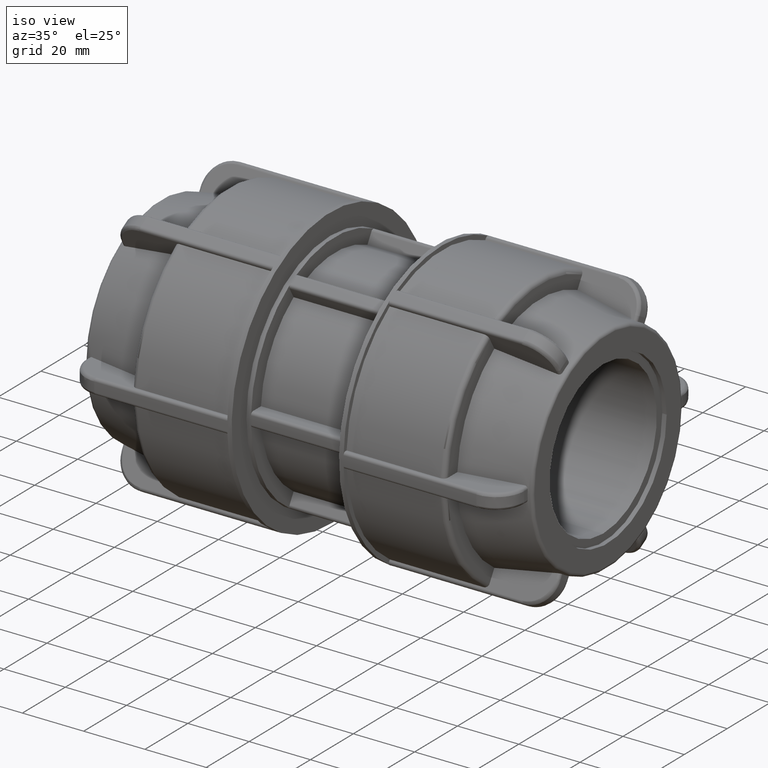
[diagram: clean part render]
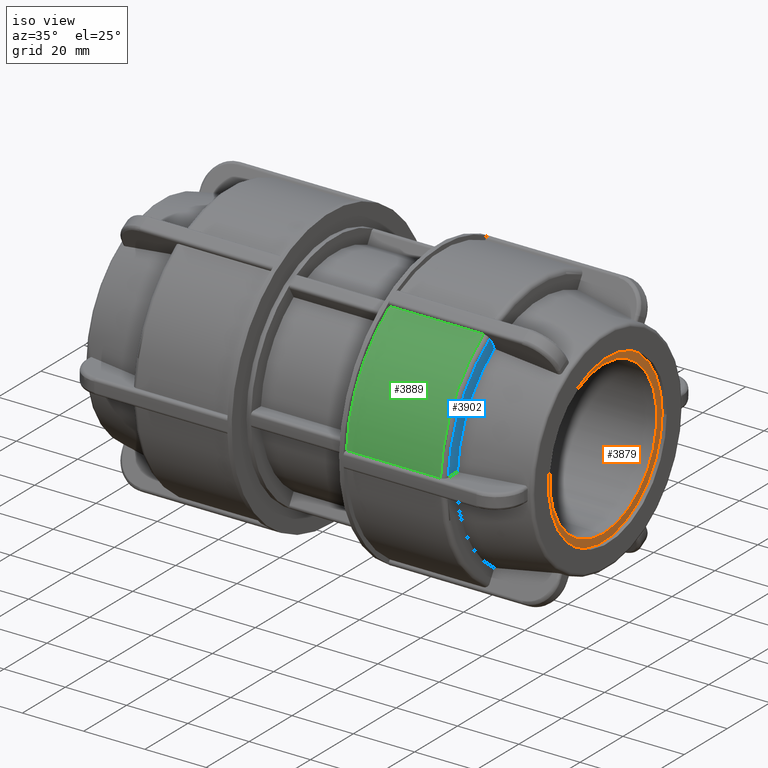
[diagram: same view with three faces highlighted in distinct colors, each labeled with its STEP entity id]
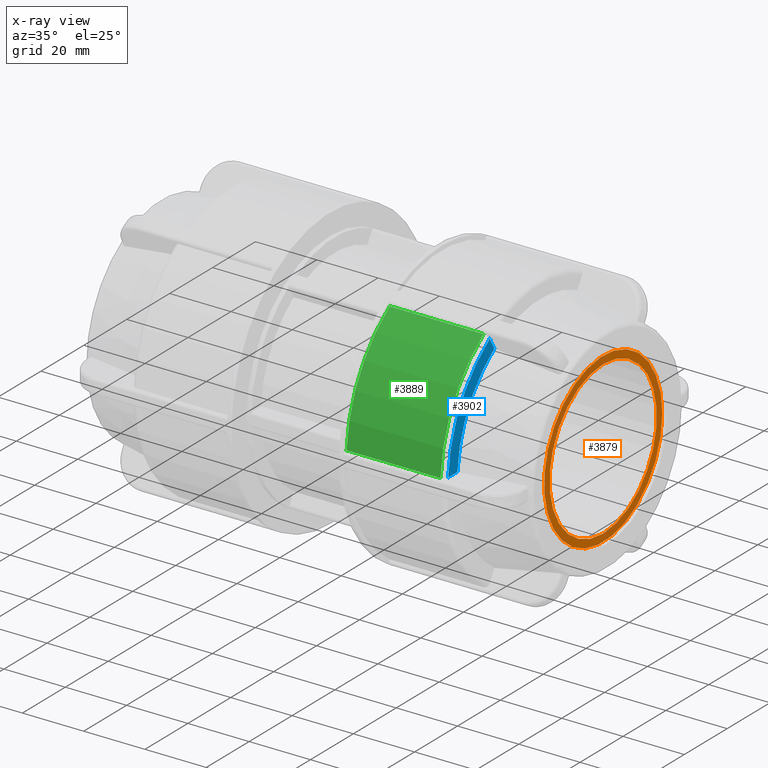
[diagram: x-ray of the same camera — body ghosted, the three highlighted faces saturated]
A machine part, iso view with three faces highlighted in distinct colors.
The next image is the same camera in x-ray (body ghosted, the three faces saturated) — at least one of them is partly hidden behind the body in this view.
Their STEP definitions:

[orange] entity #3879 — the highlighted planar face has unit normal (1, 0, 0).
#207=FACE_BOUND('',#744,.T.);
#286=PLANE('',#4287);
#493=FACE_OUTER_BOUND('',#743,.T.);
#743=EDGE_LOOP('',(#3392));
#744=EDGE_LOOP('',(#3393));
#1299=CIRCLE('',#4018,25.);
#1445=CIRCLE('',#4288,27.5);
#1558=VERTEX_POINT('',#5706);
#1835=VERTEX_POINT('',#7893);
#1971=EDGE_CURVE('',#1558,#1558,#1299,.T.);
#2383=EDGE_CURVE('',#1835,#1835,#1445,.T.);
#3392=ORIENTED_EDGE('',*,*,#2383,.T.);
#3393=ORIENTED_EDGE('',*,*,#1971,.T.);
#3879=ADVANCED_FACE('',(#493,#207),#286,.T.);
#4018=AXIS2_PLACEMENT_3D('',#5707,#4615,#4616);
#4287=AXIS2_PLACEMENT_3D('',#7892,#5309,#5310);
#4288=AXIS2_PLACEMENT_3D('',#7894,#5311,#5312);
#4615=DIRECTION('center_axis',(-1.,-3.06161699786838E-16,0.));
#4616=DIRECTION('ref_axis',(0.,0.,1.));
#5309=DIRECTION('center_axis',(1.,3.06161699786838E-16,0.));
#5310=DIRECTION('ref_axis',(0.,0.,-1.));
#5311=DIRECTION('center_axis',(1.,3.06161699786838E-16,0.));
#5312=DIRECTION('ref_axis',(0.,0.,-1.));
#5706=CARTESIAN_POINT('',(71.54,1.8841191004882E-14,-25.));
#5707=CARTESIAN_POINT('Origin',(71.54,2.19028080027504E-14,0.));
#7892=CARTESIAN_POINT('Origin',(71.54,14.72,0.));
#7893=CARTESIAN_POINT('',(71.54,15.8581274470903,-22.4670824512629));
#7894=CARTESIAN_POINT('Origin',(71.54,2.19028080027504E-14,0.));

[blue] entity #3902 — the highlighted planar face has unit normal (1, 0, 0).
#296=PLANE('',#4339);
#516=FACE_OUTER_BOUND('',#769,.T.);
#769=EDGE_LOOP('',(#3525,#3526,#3527,#3528));
#982=LINE('',#7620,#1210);
#998=LINE('',#7835,#1226);
#1210=VECTOR('',#5244,4.30647030369141);
#1226=VECTOR('',#5296,4.30647030369141);
#1462=CIRCLE('',#4321,43.16);
#1470=CIRCLE('',#4333,38.8615608775154);
#1797=VERTEX_POINT('',#7608);
#1798=VERTEX_POINT('',#7619);
#1823=VERTEX_POINT('',#7830);
#1824=VERTEX_POINT('',#7834);
#2331=EDGE_CURVE('',#1798,#1797,#982,.T.);
#2369=EDGE_CURVE('',#1824,#1823,#998,.T.);
#2405=EDGE_CURVE('',#1824,#1797,#1462,.T.);
#2418=EDGE_CURVE('',#1798,#1823,#1470,.T.);
#3525=ORIENTED_EDGE('',*,*,#2369,.T.);
#3526=ORIENTED_EDGE('',*,*,#2418,.F.);
#3527=ORIENTED_EDGE('',*,*,#2331,.T.);
#3528=ORIENTED_EDGE('',*,*,#2405,.F.);
#3902=ADVANCED_FACE('',(#516),#296,.T.);
#4321=AXIS2_PLACEMENT_3D('',#7948,#5381,#5382);
#4333=AXIS2_PLACEMENT_3D('',#8009,#5405,#5406);
#4339=AXIS2_PLACEMENT_3D('',#8017,#5418,#5419);
#5244=DIRECTION('',(1.53080849893419E-16,-0.5,0.866025403784439));
#5296=DIRECTION('',(-3.06161699786838E-16,1.,-3.33066907387547E-16));
#5381=DIRECTION('center_axis',(-1.,-3.06161699786838E-16,0.));
#5382=DIRECTION('ref_axis',(3.06161699786838E-16,-1.,1.83697019872103E-16));
#5405=DIRECTION('center_axis',(1.,3.06161699786838E-16,0.));
#5406=DIRECTION('ref_axis',(0.,0.,-1.));
#5418=DIRECTION('center_axis',(1.,3.06161699786838E-16,0.));
#5419=DIRECTION('ref_axis',(0.,0.,-1.));
#7608=CARTESIAN_POINT('',(51.1,-23.7088305895239,36.0648991690987));
#7619=CARTESIAN_POINT('',(51.1,-21.5555954376782,32.3353864854586));
#7620=CARTESIAN_POINT('',(51.1,-8.79037214443708,10.2253711716032));
#7830=CARTESIAN_POINT('',(51.1,-38.7810638564343,2.50000000000001));
#7834=CARTESIAN_POINT('',(51.1,-43.0875341601257,2.50000000000001));
#7835=CARTESIAN_POINT('',(51.1,12.1777052288898,2.5));
#7948=CARTESIAN_POINT('Origin',(51.1,1.56448628591074E-14,0.));
#8009=CARTESIAN_POINT('Origin',(51.1,1.56448628591074E-14,0.));
#8017=CARTESIAN_POINT('Origin',(51.1,38.8615608775154,0.));

[green] entity #3889 — the highlighted cylindrical surface (partial cylindrical patch) has radius 44.62 mm, axis along (1, 0, 0).
#503=FACE_OUTER_BOUND('',#755,.T.);
#755=EDGE_LOOP('',(#3440,#3441,#3442,#3443));
#981=LINE('',#7607,#1209);
#999=LINE('',#7848,#1227);
#1209=VECTOR('',#5243,30.66);
#1227=VECTOR('',#5297,30.66);
#1449=CIRCLE('',#4296,44.62);
#1456=CIRCLE('',#4309,44.62);
#1795=VERTEX_POINT('',#7604);
#1796=VERTEX_POINT('',#7606);
#1825=VERTEX_POINT('',#7836);
#1826=VERTEX_POINT('',#7847);
#2329=EDGE_CURVE('',#1796,#1795,#981,.T.);
#2371=EDGE_CURVE('',#1826,#1825,#999,.T.);
#2388=EDGE_CURVE('',#1795,#1826,#1449,.T.);
#2397=EDGE_CURVE('',#1796,#1825,#1456,.T.);
#3440=ORIENTED_EDGE('',*,*,#2371,.T.);
#3441=ORIENTED_EDGE('',*,*,#2397,.F.);
#3442=ORIENTED_EDGE('',*,*,#2329,.T.);
#3443=ORIENTED_EDGE('',*,*,#2388,.T.);
#3681=CYLINDRICAL_SURFACE('',#4308,44.62);
#3889=ADVANCED_FACE('',(#503),#3681,.T.);
#4296=AXIS2_PLACEMENT_3D('',#7905,#5328,#5329);
#4308=AXIS2_PLACEMENT_3D('',#7922,#5354,#5355);
#4309=AXIS2_PLACEMENT_3D('',#7923,#5356,#5357);
#5243=DIRECTION('',(-1.,-3.06161699786838E-16,0.));
#5297=DIRECTION('',(1.,3.06161699786838E-16,0.));
#5328=DIRECTION('center_axis',(1.,3.06161699786838E-16,0.));
#5329=DIRECTION('ref_axis',(0.,0.,-1.));
#5354=DIRECTION('center_axis',(1.,3.06161699786838E-16,0.));
#5355=DIRECTION('ref_axis',(-2.79807969853637E-16,1.,0.));
#5356=DIRECTION('center_axis',(1.,3.06161699786838E-16,0.));
#5357=DIRECTION('ref_axis',(3.04801256200318E-16,-1.,1.83697019872103E-16));
#7604=CARTESIAN_POINT('',(18.98,-24.4400180548692,37.3313530089343));
#7606=CARTESIAN_POINT('',(49.64,-24.4400180548692,37.3313530089343));
#7607=CARTESIAN_POINT('',(35.04,-24.4400180548692,37.3313530089343));
#7836=CARTESIAN_POINT('',(49.64,-44.5499090908163,2.50000000000001));
#7847=CARTESIAN_POINT('',(18.98,-44.5499090908163,2.50000000000001));
#7848=CARTESIAN_POINT('',(35.04,-44.5499090908163,2.50000000000001));
#7905=CARTESIAN_POINT('Origin',(18.98,5.81094906195419E-15,0.));
#7922=CARTESIAN_POINT('Origin',(35.04,1.07279059605308E-14,0.));
#7923=CARTESIAN_POINT('Origin',(49.64,1.51978667774187E-14,0.));